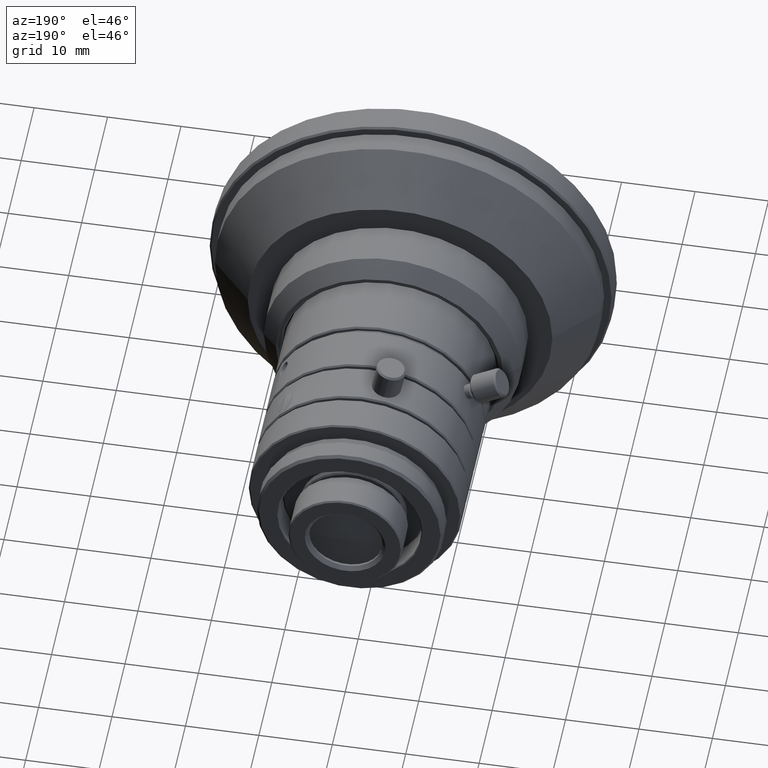
[diagram: clean part render]
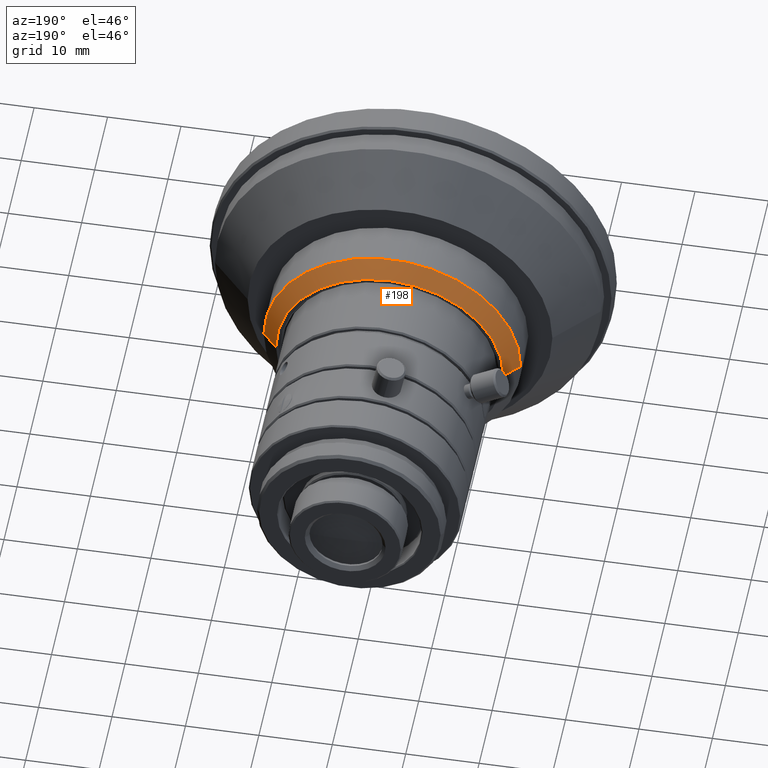
[diagram: same view with one face highlighted and labeled with its STEP entity id]
A machine part, auxiliary view. The second image highlights one B-rep face of the part: STEP entity #198.
In plain terms, the highlighted conical surface has half-angle 45 deg.
Its self-contained STEP definition (entity closure, byte-faithful):
#198=ADVANCED_FACE('0:9675',(#595),#596,.T.);
#595=FACE_OUTER_BOUND('',#1248,.T.);
#596=CONICAL_SURFACE('',#1249,0.0165,0.785398163397448);
#1248=EDGE_LOOP('',(#2418,#2419,#2420,#2421));
#1249=AXIS2_PLACEMENT_3D('',#2422,#2423,#2424);
#2418=ORIENTED_EDGE('',*,*,#4185,.F.);
#2419=ORIENTED_EDGE('',*,*,#4186,.T.);
#2420=ORIENTED_EDGE('',*,*,#4187,.F.);
#2421=ORIENTED_EDGE('',*,*,#4188,.F.);
#2422=CARTESIAN_POINT('',(1.38777878078145E-17,-0.00532474679709576,0.0));
#2423=DIRECTION('',(3.26943875618435E-15,-1.0,-0.0));
#2424=DIRECTION('',(1.0,3.26943875618435E-15,0.0));
#4185=EDGE_CURVE('',#5162,#5163,#5164,.T.);
#4186=EDGE_CURVE('0:9729',#5162,#5165,#5166,.T.);
#4187=EDGE_CURVE('',#5167,#5165,#5168,.T.);
#4188=EDGE_CURVE('0:9726',#5163,#5167,#5169,.T.);
#5162=VERTEX_POINT('',#6864);
#5163=VERTEX_POINT('NONE',#6865);
#5164=LINE('',#6866,#6867);
#5165=VERTEX_POINT('NONE',#6868);
#5166=CIRCLE('',#6869,0.0155);
#5167=VERTEX_POINT('',#6870);
#5168=LINE('',#6871,#6872);
#5169=CIRCLE('',#6873,0.0175);
#6864=CARTESIAN_POINT('',(0.0155,-0.00432474679709581,1.8982025386784E-18));
#6865=CARTESIAN_POINT('',(0.0175000000000001,-0.0063247467970958,0.0));
#6866=CARTESIAN_POINT('',(0.0165,-0.0053247467970957,2.02066721859313E-18));
#6867=VECTOR('',#8126,1.0);
#6868=CARTESIAN_POINT('',(-0.0155,-0.00432474679709591,2.02066721859314E-18));
#6869=AXIS2_PLACEMENT_3D('',#8127,#8128,#8129);
#6870=CARTESIAN_POINT('',(-0.0175,-0.00632474679709591,2.14313189850787E-18));
#6871=CARTESIAN_POINT('',(-0.0165,-0.00532474679709581,-2.02066721859313E-18));
#6872=VECTOR('',#8130,1.0);
#6873=AXIS2_PLACEMENT_3D('',#8131,#8132,#8133);
#8126=DIRECTION('',(0.707106781186549,-0.707106781186546,8.65956056235493E-17));
#8127=CARTESIAN_POINT('',(1.38777878078145E-17,-0.00432474679709586,0.0));
#8128=DIRECTION('',(3.26943875618435E-15,-1.0,0.0));
#8129=DIRECTION('',(1.0,3.26943875618435E-15,0.0));
#8130=DIRECTION('',(0.707106781186545,0.70710678118655,8.65956056235493E-17));
#8131=CARTESIAN_POINT('',(2.08166817117217E-17,-0.00632474679709586,0.0));
#8132=DIRECTION('',(3.26943875618435E-15,-1.0,0.0));
#8133=DIRECTION('',(1.0,3.26943875618435E-15,0.0));